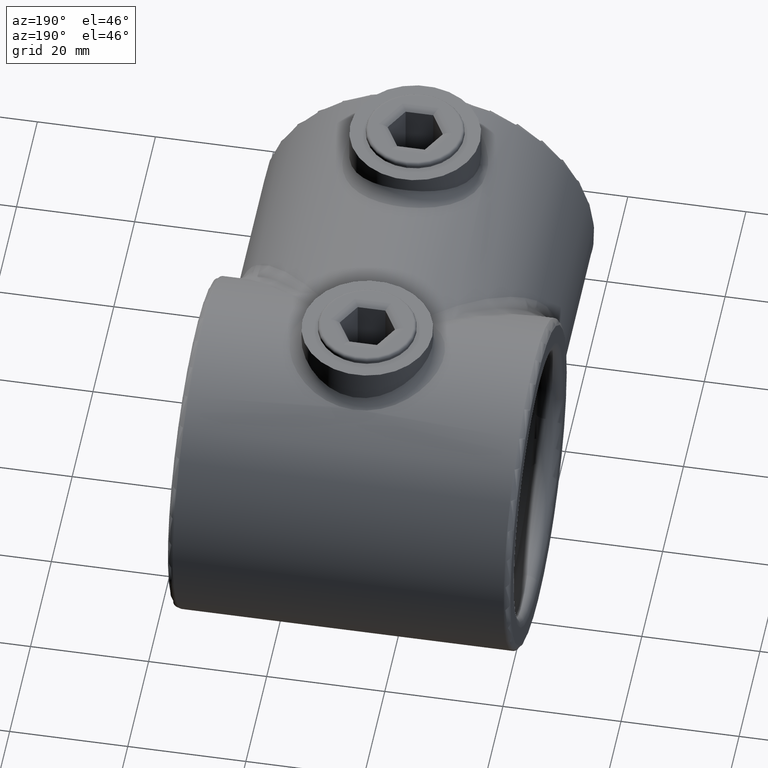
[diagram: clean part render]
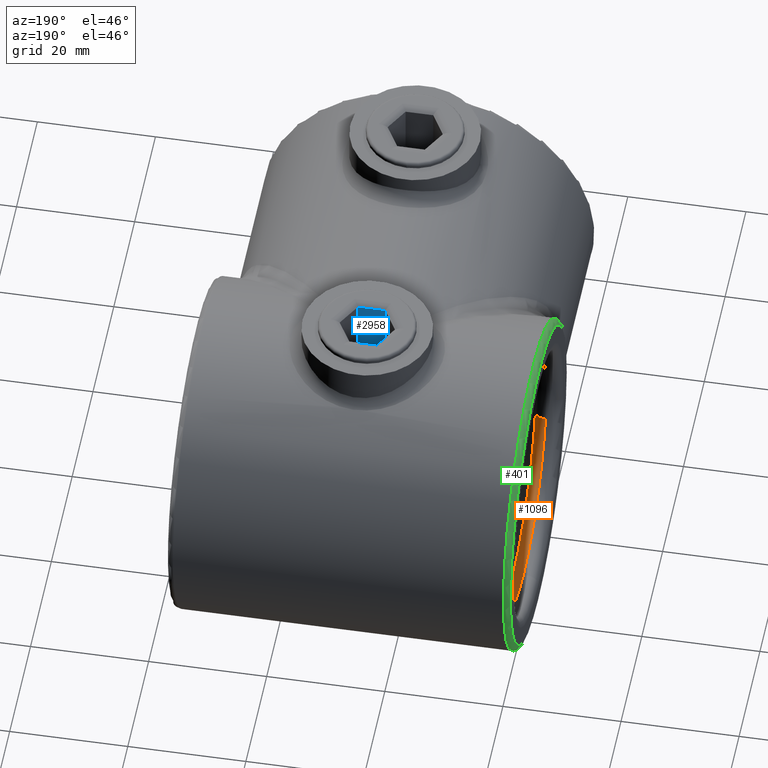
[diagram: same view with three faces highlighted in distinct colors, each labeled with its STEP entity id]
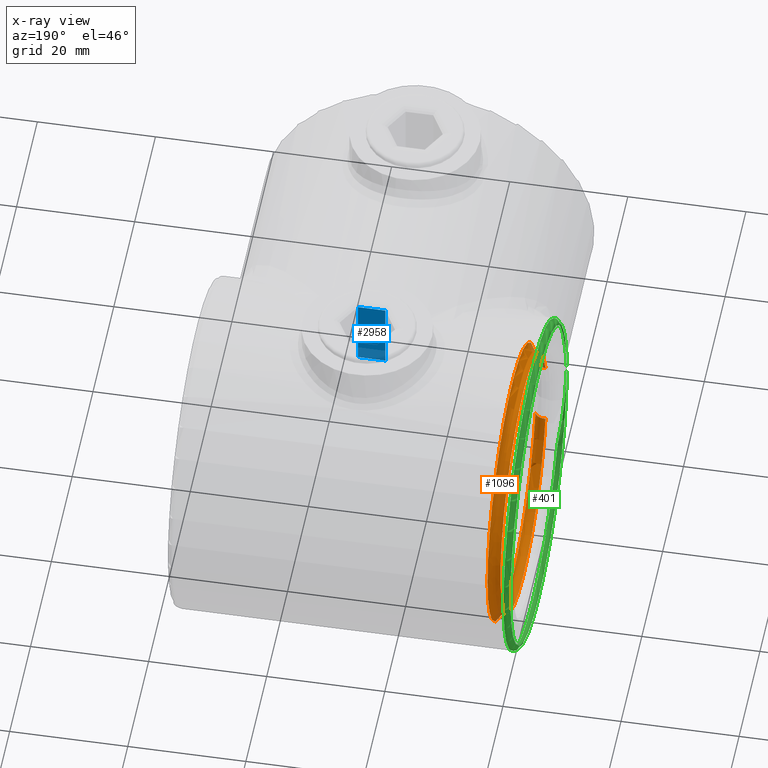
[diagram: x-ray of the same camera — body ghosted, the three highlighted faces saturated]
A machine part, auxiliary view with three faces highlighted in distinct colors.
The next image is the same camera in x-ray (body ghosted, the three faces saturated) — at least one of them is partly hidden behind the body in this view.
Their STEP definitions:

[orange] entity #1096 — the highlighted toroidal blend (fillet) surface has major radius 24 mm and minor (blend) radius 2 mm.
#56 = EDGE_CURVE ( 'NONE', #3709, #2308, #1261, .T. ) ;
#132 = AXIS2_PLACEMENT_3D ( 'NONE', #1393, #2976, #2960 ) ;
#200 = CARTESIAN_POINT ( 'NONE',  ( -24.50000000000000355, 37.42156862745098067, 6.516474257993617236 ) ) ;
#261 = DIRECTION ( 'NONE',  ( 0.000000000000000000, 0.000000000000000000, -1.000000000000000000 ) ) ;
#744 = CARTESIAN_POINT ( 'NONE',  ( -24.50000000000000355, 37.42156862745098067, -6.516474257993610131 ) ) ;
#760 = DIRECTION ( 'NONE',  ( 0.000000000000000000, 0.9607843137254905574, 0.2772967769358994916 ) ) ;
#830 = AXIS2_PLACEMENT_3D ( 'NONE', #3382, #4018, #261 ) ;
#903 = CIRCLE ( 'NONE', #2662, 22.00000000000000000 ) ;
#1053 = FACE_OUTER_BOUND ( 'NONE', #3512, .T. ) ;
#1096 = ADVANCED_FACE ( 'NONE', ( #1053 ), #2440, .T. ) ;
#1261 = CIRCLE ( 'NONE', #1481, 1.999999999999997113 ) ;
#1278 = EDGE_CURVE ( 'NONE', #2308, #2006, #3641, .T. ) ;
#1377 = CARTESIAN_POINT ( 'NONE',  ( -26.43649167310370629, 38.86274509803919841, -6.100529092589766833 ) ) ;
#1393 = CARTESIAN_POINT ( 'NONE',  ( -26.43649167310370629, 36.94117647058821774, 6.655122646461572700 ) ) ;
#1395 = CARTESIAN_POINT ( 'NONE',  ( -26.43649167310370629, 60.00000000000000000, 0.000000000000000000 ) ) ;
#1481 = AXIS2_PLACEMENT_3D ( 'NONE', #2601, #1687, #760 ) ;
#1561 = VERTEX_POINT ( 'NONE', #3126 ) ;
#1687 = DIRECTION ( 'NONE',  ( -2.323719019703474186E-16, 0.2772967769358991030, -0.9607843137254908905 ) ) ;
#1816 = CIRCLE ( 'NONE', #132, 1.999999999999997113 ) ;
#1929 = CARTESIAN_POINT ( 'NONE',  ( -26.43649167310370629, 60.00000000000000000, 0.000000000000000000 ) ) ;
#2006 = VERTEX_POINT ( 'NONE', #200 ) ;
#2222 = ORIENTED_EDGE ( 'NONE', *, *, #1278, .T. ) ;
#2267 = DIRECTION ( 'NONE',  ( 1.000000000000000000, 0.000000000000000000, 0.000000000000000000 ) ) ;
#2308 = VERTEX_POINT ( 'NONE', #744 ) ;
#2440 = TOROIDAL_SURFACE ( 'NONE', #3489, 24.00000000000000000, 2.000000000000000000 ) ;
#2601 = CARTESIAN_POINT ( 'NONE',  ( -26.43649167310370629, 36.94117647058821774, -6.655122646461563818 ) ) ;
#2662 = AXIS2_PLACEMENT_3D ( 'NONE', #1929, #2267, #3561 ) ;
#2873 = EDGE_CURVE ( 'NONE', #3709, #1561, #903, .T. ) ;
#2907 = ORIENTED_EDGE ( 'NONE', *, *, #56, .T. ) ;
#2960 = DIRECTION ( 'NONE',  ( 0.000000000000000000, -0.9607843137254905574, 0.2772967769358994916 ) ) ;
#2976 = DIRECTION ( 'NONE',  ( 6.287710288609400448E-16, 0.2772967769358991030, 0.9607843137254908905 ) ) ;
#3126 = CARTESIAN_POINT ( 'NONE',  ( -26.43649167310370629, 38.86274509803919841, 6.100529092589775715 ) ) ;
#3288 = EDGE_CURVE ( 'NONE', #2006, #1561, #1816, .T. ) ;
#3382 = CARTESIAN_POINT ( 'NONE',  ( -24.50000000000000355, 60.00000000000000000, 0.000000000000000000 ) ) ;
#3489 = AXIS2_PLACEMENT_3D ( 'NONE', #1395, #3588, #3575 ) ;
#3512 = EDGE_LOOP ( 'NONE', ( #2907, #2222, #3544, #3606 ) ) ;
#3544 = ORIENTED_EDGE ( 'NONE', *, *, #3288, .T. ) ;
#3561 = DIRECTION ( 'NONE',  ( 0.000000000000000000, 0.000000000000000000, -1.000000000000000000 ) ) ;
#3575 = DIRECTION ( 'NONE',  ( 0.000000000000000000, 0.000000000000000000, -1.000000000000000000 ) ) ;
#3588 = DIRECTION ( 'NONE',  ( 1.000000000000000000, 0.000000000000000000, 0.000000000000000000 ) ) ;
#3606 = ORIENTED_EDGE ( 'NONE', *, *, #2873, .F. ) ;
#3641 = CIRCLE ( 'NONE', #830, 23.49999999999998224 ) ;
#3709 = VERTEX_POINT ( 'NONE', #1377 ) ;
#4018 = DIRECTION ( 'NONE',  ( 1.000000000000000000, 0.000000000000000000, 0.000000000000000000 ) ) ;

[blue] entity #2958 — the highlighted planar face has unit normal (0, -1, 0).
#72 = DIRECTION ( 'NONE',  ( 0.000000000000000000, 1.000000000000000000, 0.000000000000000000 ) ) ;
#135 = EDGE_CURVE ( 'NONE', #2026, #585, #1638, .T. ) ;
#323 = EDGE_CURVE ( 'NONE', #373, #585, #3100, .T. ) ;
#373 = VERTEX_POINT ( 'NONE', #2812 ) ;
#381 = ORIENTED_EDGE ( 'NONE', *, *, #323, .F. ) ;
#585 = VERTEX_POINT ( 'NONE', #2485 ) ;
#780 = EDGE_LOOP ( 'NONE', ( #2589, #1302, #381, #3705 ) ) ;
#908 = DIRECTION ( 'NONE',  ( -0.4999999999999998335, 0.000000000000000000, 0.8660254037844387076 ) ) ;
#1130 = CARTESIAN_POINT ( 'NONE',  ( -2.337499999999992362, 0.5000000000000004441, -4.048668762692251732 ) ) ;
#1144 = VECTOR ( 'NONE', #72, 1000.000000000000000 ) ;
#1302 = ORIENTED_EDGE ( 'NONE', *, *, #135, .T. ) ;
#1461 = EDGE_CURVE ( 'NONE', #373, #3759, #1906, .T. ) ;
#1492 = VECTOR ( 'NONE', #4022, 1000.000000000000114 ) ;
#1548 = CARTESIAN_POINT ( 'NONE',  ( -2.337499999999992362, 0.5000000000000004441, -4.048668762692251732 ) ) ;
#1638 = LINE ( 'NONE', #3706, #1492 ) ;
#1906 = LINE ( 'NONE', #1548, #2632 ) ;
#1941 = CARTESIAN_POINT ( 'NONE',  ( -2.337499999999992362, 0.000000000000000000, -4.048668762692251732 ) ) ;
#2026 = VERTEX_POINT ( 'NONE', #3280 ) ;
#2111 = AXIS2_PLACEMENT_3D ( 'NONE', #3063, #3698, #908 ) ;
#2155 = VECTOR ( 'NONE', #2196, 1000.000000000000000 ) ;
#2196 = DIRECTION ( 'NONE',  ( 0.000000000000000000, 1.000000000000000000, 0.000000000000000000 ) ) ;
#2485 = CARTESIAN_POINT ( 'NONE',  ( -4.674999999999998934, 12.49999999999999645, -3.469446951953614189E-15 ) ) ;
#2589 = ORIENTED_EDGE ( 'NONE', *, *, #3157, .T. ) ;
#2632 = VECTOR ( 'NONE', #3760, 1000.000000000000114 ) ;
#2812 = CARTESIAN_POINT ( 'NONE',  ( -4.674999999999998934, 0.5000000000000004441, -3.469446951953614189E-15 ) ) ;
#2958 = ADVANCED_FACE ( 'NONE', ( #3637 ), #3096, .F. ) ;
#3039 = LINE ( 'NONE', #1941, #1144 ) ;
#3063 = CARTESIAN_POINT ( 'NONE',  ( -2.337499999999992362, 0.000000000000000000, -4.048668762692251732 ) ) ;
#3096 = PLANE ( 'NONE',  #2111 ) ;
#3100 = LINE ( 'NONE', #3453, #2155 ) ;
#3157 = EDGE_CURVE ( 'NONE', #3759, #2026, #3039, .T. ) ;
#3280 = CARTESIAN_POINT ( 'NONE',  ( -2.337499999999992362, 12.49999999999999645, -4.048668762692251732 ) ) ;
#3453 = CARTESIAN_POINT ( 'NONE',  ( -4.674999999999998934, 0.000000000000000000, -3.469446951953614189E-15 ) ) ;
#3637 = FACE_OUTER_BOUND ( 'NONE', #780, .T. ) ;
#3698 = DIRECTION ( 'NONE',  ( -0.8660254037844387076, 0.000000000000000000, -0.4999999999999998335 ) ) ;
#3705 = ORIENTED_EDGE ( 'NONE', *, *, #1461, .T. ) ;
#3706 = CARTESIAN_POINT ( 'NONE',  ( -4.674999999999998934, 12.49999999999999645, -3.469446951953614189E-15 ) ) ;
#3759 = VERTEX_POINT ( 'NONE', #1130 ) ;
#3760 = DIRECTION ( 'NONE',  ( 0.4999999999999998335, 0.000000000000000000, -0.8660254037844387076 ) ) ;
#4022 = DIRECTION ( 'NONE',  ( -0.4999999999999998335, 0.000000000000000000, 0.8660254037844387076 ) ) ;

[green] entity #401 — the highlighted toroidal blend (fillet) surface has major radius 27 mm and minor (blend) radius 1 mm.
#12 = TOROIDAL_SURFACE ( 'NONE', #1221, 26.99999999999998224, 1.000000000000000000 ) ;
#44 = CARTESIAN_POINT ( 'NONE',  ( -28.00000000000000000, 36.24242424242425642, -14.81815083345585826 ) ) ;
#69 = CARTESIAN_POINT ( 'NONE',  ( -28.84815053870998014, 32.38145698071013356, -0.0001783189149426149533 ) ) ;
#176 = EDGE_LOOP ( 'NONE', ( #773, #3452 ) ) ;
#192 = B_SPLINE_CURVE_WITH_KNOTS ( 'NONE', 3,
 ( #717, #2250, #2221, #1038, #1617, #3511, #394, #3194, #3156, #2264, #2838, #3468, #69, #1335, #3210, #1350, #3527, #3808, #2558, #362, #694, #3167, #2852, #1010, #1645 ),
 .UNSPECIFIED., .F., .F.,
 ( 4, 2, 2, 2, 2, 2, 1, 2, 2, 2, 2, 2, 4 ),
 ( 0.000000000000000000, 0.003885016256898932065, 0.005827524385348397881, 0.007770032513797864131, 0.009712540642247330380, 0.01165504877069679576, 0.01554006502759572479, 0.01942508128449465382, 0.02136758941294411920, 0.02331009754139358459, 0.02525260566984305344, 0.02719511379829251535, 0.03108013005519143571 ),
 .UNSPECIFIED. ) ;
#362 = CARTESIAN_POINT ( 'NONE',  ( -28.56261292766313176, 33.63571115078833884, 8.930743374214426211 ) ) ;
#394 = CARTESIAN_POINT ( 'NONE',  ( -28.60206468523053047, 33.46320278255928571, -8.308828111829480889 ) ) ;
#401 = ADVANCED_FACE ( 'NONE', ( #3889, #858 ), #12, .T. ) ;
#536 = AXIS2_PLACEMENT_3D ( 'NONE', #3097, #939, #2138 ) ;
#639 = ORIENTED_EDGE ( 'NONE', *, *, #2191, .F. ) ;
#694 = CARTESIAN_POINT ( 'NONE',  ( -28.47355779774637696, 34.02732597965567152, 10.16165600297849281 ) ) ;
#717 = CARTESIAN_POINT ( 'NONE',  ( -28.00000000000000000, 36.24242424242425642, -14.81815083345585826 ) ) ;
#773 = ORIENTED_EDGE ( 'NONE', *, *, #1427, .F. ) ;
#806 = CIRCLE ( 'NONE', #536, 27.99999999999998224 ) ;
#824 = VERTEX_POINT ( 'NONE', #3158 ) ;
#831 = VERTEX_POINT ( 'NONE', #44 ) ;
#858 = FACE_OUTER_BOUND ( 'NONE', #176, .T. ) ;
#939 = DIRECTION ( 'NONE',  ( 1.000000000000000000, 0.000000000000000000, 0.000000000000000000 ) ) ;
#1010 = CARTESIAN_POINT ( 'NONE',  ( -28.13454383229934308, 35.55747382344580387, 13.71998672027084432 ) ) ;
#1038 = CARTESIAN_POINT ( 'NONE',  ( -28.42391365981819717, 34.24655647245250378, -10.77085994503428523 ) ) ;
#1221 = AXIS2_PLACEMENT_3D ( 'NONE', #3273, #2372, #2385 ) ;
#1296 = DIRECTION ( 'NONE',  ( 0.000000000000000000, 0.000000000000000000, -1.000000000000000000 ) ) ;
#1335 = CARTESIAN_POINT ( 'NONE',  ( -28.81851890057660981, 32.51298914506666904, 2.572151833897382112 ) ) ;
#1350 = CARTESIAN_POINT ( 'NONE',  ( -28.75042121302715969, 32.81319931463321637, 5.145855828767106566 ) ) ;
#1427 = EDGE_CURVE ( 'NONE', #831, #824, #806, .T. ) ;
#1617 = CARTESIAN_POINT ( 'NONE',  ( -28.47366295604650688, 34.02686234343354954, -10.16028547101319823 ) ) ;
#1645 = CARTESIAN_POINT ( 'NONE',  ( -28.00000000000000000, 36.24242424242424221, 14.81815083345582451 ) ) ;
#2109 = EDGE_CURVE ( 'NONE', #831, #824, #192, .T. ) ;
#2138 = DIRECTION ( 'NONE',  ( 0.000000000000000000, 0.000000000000000000, -1.000000000000000000 ) ) ;
#2191 = EDGE_CURVE ( 'NONE', #3633, #3633, #3287, .T. ) ;
#2209 = CARTESIAN_POINT ( 'NONE',  ( -29.00000000000000000, 60.00000000000000000, 0.000000000000000000 ) ) ;
#2221 = CARTESIAN_POINT ( 'NONE',  ( -28.26118558945741199, 34.97718306560144441, -12.56909339855721086 ) ) ;
#2250 = CARTESIAN_POINT ( 'NONE',  ( -28.13455038530430485, 35.55744046269328607, -13.71993323379913754 ) ) ;
#2264 = CARTESIAN_POINT ( 'NONE',  ( -28.75040886233236037, 32.81325360853030304, -5.146208770297263868 ) ) ;
#2372 = DIRECTION ( 'NONE',  ( 1.000000000000000000, 0.000000000000000000, 0.000000000000000000 ) ) ;
#2385 = DIRECTION ( 'NONE',  ( 0.000000000000000000, 0.000000000000000000, -1.000000000000000000 ) ) ;
#2558 = CARTESIAN_POINT ( 'NONE',  ( -28.60204456895854008, 33.46329081267723637, 8.309180083658349147 ) ) ;
#2838 = CARTESIAN_POINT ( 'NONE',  ( -28.77073511349366086, 32.72375296507186704, -4.501738426371324486 ) ) ;
#2852 = CARTESIAN_POINT ( 'NONE',  ( -28.26112257530072469, 34.97747820837049915, 12.56960037523770524 ) ) ;
#2887 = DIRECTION ( 'NONE',  ( -1.000000000000000000, -0.000000000000000000, -0.000000000000000000 ) ) ;
#2965 = AXIS2_PLACEMENT_3D ( 'NONE', #2209, #2887, #1296 ) ;
#3097 = CARTESIAN_POINT ( 'NONE',  ( -28.00000000000000000, 60.00000000000000000, 0.000000000000000000 ) ) ;
#3156 = CARTESIAN_POINT ( 'NONE',  ( -28.70055674943971269, 33.03209025169490332, -6.422188701471959860 ) ) ;
#3158 = CARTESIAN_POINT ( 'NONE',  ( -28.00000000000000000, 36.24242424242424221, 14.81815083345582451 ) ) ;
#3167 = CARTESIAN_POINT ( 'NONE',  ( -28.42375251332082797, 34.24727389991745952, 10.77273521508364063 ) ) ;
#3194 = CARTESIAN_POINT ( 'NONE',  ( -28.67101129489049427, 33.16147537686952518, -7.054872327453479031 ) ) ;
#3210 = CARTESIAN_POINT ( 'NONE',  ( -28.77074495046416303, 32.72370962841652187, 4.501402907343782012 ) ) ;
#3273 = CARTESIAN_POINT ( 'NONE',  ( -28.00000000000000000, 60.00000000000000000, 0.000000000000000000 ) ) ;
#3287 = CIRCLE ( 'NONE', #2965, 26.99999999999998224 ) ;
#3441 = EDGE_LOOP ( 'NONE', ( #639 ) ) ;
#3452 = ORIENTED_EDGE ( 'NONE', *, *, #2109, .T. ) ;
#3468 = CARTESIAN_POINT ( 'NONE',  ( -28.81851332596806259, 32.51301383756480590, -2.572500356799367172 ) ) ;
#3511 = CARTESIAN_POINT ( 'NONE',  ( -28.56265329938718622, 33.63553482904979575, -8.930102266474010619 ) ) ;
#3527 = CARTESIAN_POINT ( 'NONE',  ( -28.70056670685802303, 33.03204661926459806, 6.421970643616645269 ) ) ;
#3633 = VERTEX_POINT ( 'NONE', #3669 ) ;
#3669 = CARTESIAN_POINT ( 'NONE',  ( -29.00000000000000000, 60.00000000000000000, -26.99999999999998224 ) ) ;
#3808 = CARTESIAN_POINT ( 'NONE',  ( -28.67101632570227920, 33.16145336445335090, 7.054794717057871978 ) ) ;
#3889 = FACE_OUTER_BOUND ( 'NONE', #3441, .T. ) ;